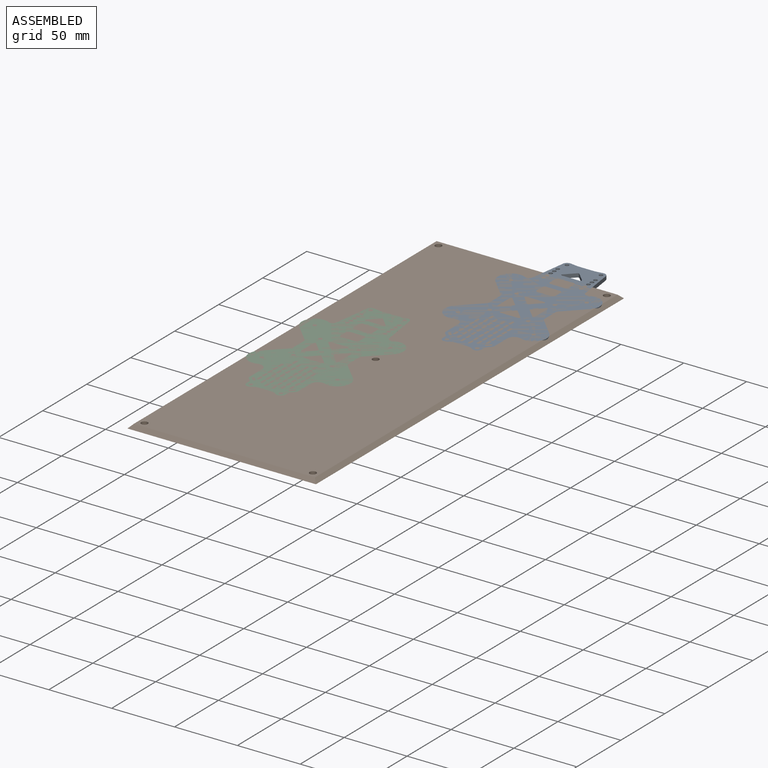
[diagram: assembled view]
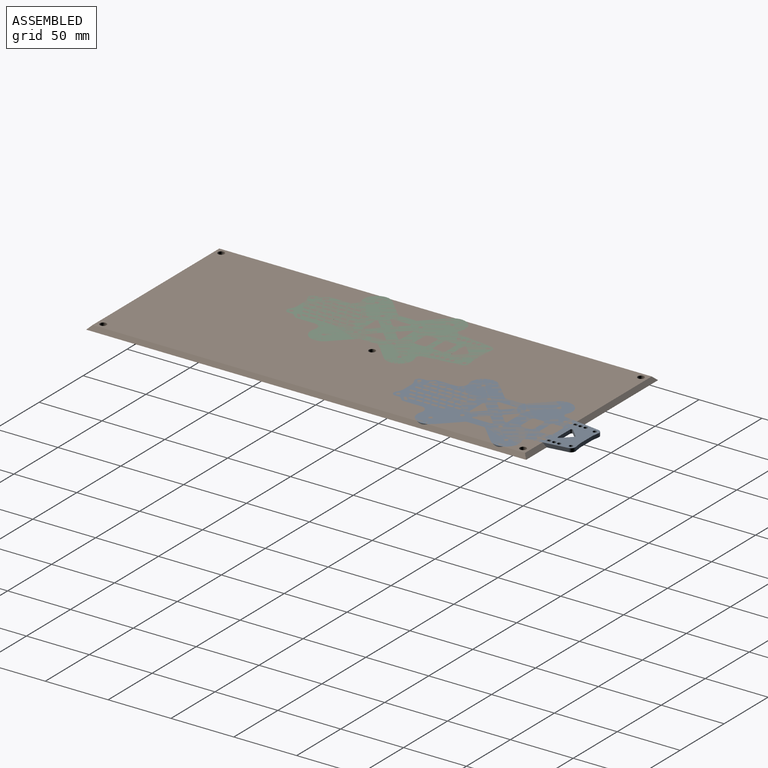
[diagram: assembled view, second angle]
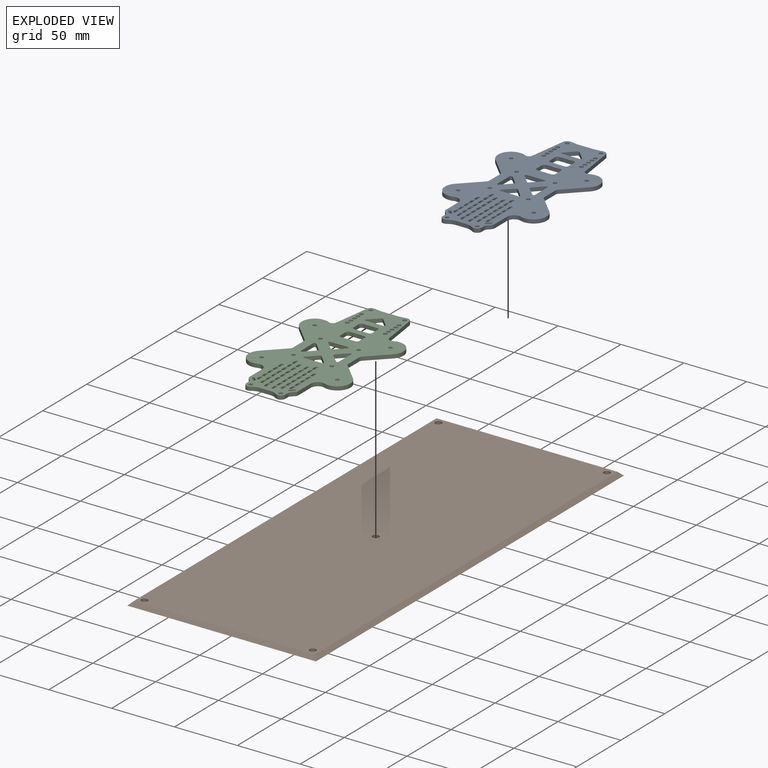
[diagram: exploded view]
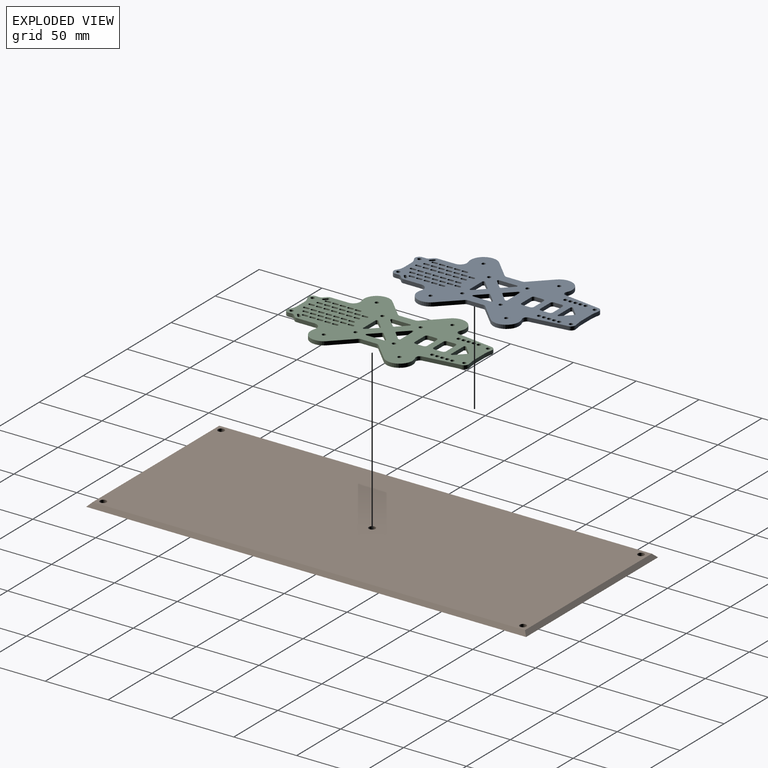
[diagram: exploded view, second angle]
ASSEMBLY  parts=3 mates=2
PART A: 274 faces, bbox 80.9x145.5x3 mm
  f0: plane 3x3mm, normal (-1,0,0), area 9mm2, adj f1,f215,f272,f273
  f1: cylinder r=1mm len=3mm, axis (0,0,-1), area 9.4mm2, adj f0,f2,f272,f273
  f2: plane 3x3mm, normal (1,0,0), area 9mm2, adj f1,f215,f272,f273
  f3: cylinder r=1mm len=3mm, axis (0,0,-1), area 9.4mm2, adj f4,f216,f272,f273
  f4: plane 3x3mm, normal (1,0,0), area 9mm2, adj f3,f5,f272,f273
  f5: cylinder r=1mm len=3mm, axis (0,0,-1), area 9.4mm2, adj f4,f216,f272,f273
  f6: cylinder r=1mm len=3mm, axis (0,0,-1), area 9.4mm2, adj f7,f217,f272,f273
  f7: plane 3x3mm, normal (-1,0,0), area 9mm2, adj f6,f8,f272,f273
  f8: cylinder r=1mm len=3mm, axis (0,0,-1), area 9.4mm2, adj f7,f217,f272,f273
  f9: plane 3x3mm, normal (-1,0,0), area 9mm2, adj f10,f218,f272,f273
  f10: cylinder r=1mm len=3mm, axis (0,0,-1), area 9.4mm2, adj f9,f11,f272,f273
  f11: plane 3x3mm, normal (1,0,0), area 9mm2, adj f10,f218,f272,f273
  f12: cylinder r=1mm len=3mm, axis (0,0,-1), area 9.4mm2, adj f13,f219,f272,f273
  f13: plane 3x3mm, normal (1,0,0), area 9mm2, adj f12,f14,f272,f273
  f14: cylinder r=1mm len=3mm, axis (0,0,-1), area 9.4mm2, adj f13,f219,f272,f273
  f15: plane 3x3mm, normal (-1,0,0), area 9mm2, adj f16,f220,f272,f273
  f16: cylinder r=1mm len=3mm, axis (0,0,-1), area 9.4mm2, adj f15,f17,f272,f273
  f17: plane 3x3mm, normal (1,0,0), area 9mm2, adj f16,f220,f272,f273
  f18: plane 3x3mm, normal (-1,0,0), area 9mm2, adj f19,f221,f272,f273
  f19: cylinder r=1mm len=3mm, axis (0,0,-1), area 9.4mm2, adj f18,f20,f272,f273
  f20: plane 3x3mm, normal (1,0,0), area 9mm2, adj f19,f221,f272,f273
  f21: cylinder r=1mm len=3mm, axis (0,0,-1), area 9.4mm2, adj f22,f222,f272,f273
  f22: plane 3x3mm, normal (-1,0,0), area 9mm2, adj f21,f23,f272,f273
  f23: cylinder r=1mm len=3mm, axis (0,0,-1), area 9.4mm2, adj f22,f222,f272,f273
  f24: cylinder r=1mm len=3mm, axis (0,0,-1), area 9.4mm2, adj f25,f223,f272,f273
  f25: plane 3x3mm, normal (1,0,0), area 9mm2, adj f24,f26,f272,f273
  f26: cylinder r=1mm len=3mm, axis (0,0,-1), area 9.4mm2, adj f25,f223,f272,f273
  f27: cylinder r=1mm len=3mm, axis (0,0,-1), area 9.4mm2, adj f28,f224,f272,f273
  f28: plane 3x3mm, normal (1,0,0), area 9mm2, adj f27,f29,f272,f273
  f29: cylinder r=1mm len=3mm, axis (0,0,-1), area 9.4mm2, adj f28,f224,f272,f273
  f30: plane 3x3mm, normal (-1,0,0), area 9mm2, adj f31,f225,f272,f273
  f31: cylinder r=1mm len=3mm, axis (0,0,-1), area 9.4mm2, adj f30,f32,f272,f273
  f32: plane 3x3mm, normal (1,0,0), area 9mm2, adj f31,f225,f272,f273
  f33: plane 3x2.12mm, normal (-0.71,0.71,0), area 9mm2, adj f34,f226,f272,f273
  f34: cylinder r=1mm len=3mm, axis (0,0,-1), area 9.4mm2, adj f33,f35,f272,f273
  f35: plane 3x2.12mm, normal (0.71,-0.71,0), area 9mm2, adj f34,f226,f272,f273
  f36: cylinder r=1mm len=3mm, axis (0,0,-1), area 9.4mm2, adj f37,f227,f272,f273
  f37: plane 3x3mm, normal (1,0,0), area 9mm2, adj f36,f38,f272,f273
  f38: cylinder r=1mm len=3mm, axis (0,0,-1), area 9.4mm2, adj f37,f227,f272,f273
  f39: plane 11x3mm, normal (0,1,0), area 33mm2, adj f40,f228,f272,f273
  f40: cylinder r=2mm len=3mm, axis (0,0,-1), area 9.4mm2, adj f39,f41,f272,f273
  f41: plane 6x3mm, normal (1,0,0), area 18mm2, adj f40,f42,f272,f273
  f42: cylinder r=2mm len=3mm, axis (0,0,-1), area 9.4mm2, adj f41,f43,f272,f273
  f43: plane 11x3mm, normal (0,-1,0), area 33mm2, adj f42,f44,f272,f273
  f44: cylinder r=2mm len=3mm, axis (0,0,-1), area 9.4mm2, adj f43,f45,f272,f273
  f45: plane 6x3mm, normal (-1,0,0), area 18mm2, adj f44,f228,f272,f273
  f46: cylinder r=1mm len=3mm, axis (0,0,-1), area 9.4mm2, adj f47,f229,f272,f273
  f47: plane 3x3mm, normal (1,0,0), area 9mm2, adj f46,f48,f272,f273
  f48: cylinder r=1mm len=3mm, axis (0,0,-1), area 9.4mm2, adj f47,f229,f272,f273
  f49: plane 3x3mm, normal (-1,0,0), area 9mm2, adj f50,f230,f272,f273
  f50: cylinder r=1mm len=3mm, axis (0,0,-1), area 9.4mm2, adj f49,f51,f272,f273
  f51: plane 3x3mm, normal (1,0,0), area 9mm2, adj f50,f230,f272,f273
  f52: cylinder r=1mm len=3mm, axis (0,0,-1), area 9.4mm2, adj f53,f231,f272,f273
  f53: plane 3x3mm, normal (-1,0,0), area 9mm2, adj f52,f54,f272,f273
  f54: cylinder r=1mm len=3mm, axis (0,0,-1), area 9.4mm2, adj f53,f231,f272,f273
  f55: cylinder r=1mm len=3mm, axis (0,0,-1), area 7.1mm2, adj f56,f232,f272,f273
  f56: plane 14x3mm, normal (0,1,0), area 42mm2, adj f55,f57,f272,f273
  f57: cylinder r=1mm len=3mm, axis (0,0,-1), area 7.1mm2, adj f56,f58,f272,f273
  f58: plane 7x7mm, normal (0.71,-0.71,0), area 29.7mm2, adj f57,f59,f272,f273
  f59: cylinder r=1mm len=3mm, axis (0,0,-1), area 4.7mm2, adj f58,f232,f272,f273
  f60: plane 7x7mm, normal (0.71,0.71,0), area 29.7mm2, adj f61,f233,f272,f273
  f61: cylinder r=1mm len=3mm, axis (0,0,-1), area 7.1mm2, adj f60,f62,f272,f273
  f62: plane 14x3mm, normal (0,-1,0), area 42mm2, adj f61,f63,f272,f273
  f63: cylinder r=1mm len=3mm, axis (0,0,-1), area 7.1mm2, adj f62,f64,f272,f273
  f64: plane 7x7mm, normal (-0.71,0.71,0), area 29.7mm2, adj f63,f233,f272,f273
  f65: plane 7x7mm, normal (0.71,-0.71,0), area 29.7mm2, adj f66,f234,f272,f273
  f66: cylinder r=1mm len=3mm, axis (0,0,-1), area 7.1mm2, adj f65,f67,f272,f273
  f67: plane 14x3mm, normal (-1,0,0), area 42mm2, adj f66,f68,f272,f273
  f68: cylinder r=1mm len=3mm, axis (0,0,-1), area 7.1mm2, adj f67,f69,f272,f273
  f69: plane 7x7mm, normal (0.71,0.71,0), area 29.7mm2, adj f68,f234,f272,f273
  f70: plane 7x7mm, normal (-0.71,-0.71,0), area 29.7mm2, adj f71,f235,f272,f273
  f71: cylinder r=1mm len=3mm, axis (0,0,-1), area 7.1mm2, adj f70,f72,f272,f273
  f72: plane 14x3mm, normal (0,1,0), area 42mm2, adj f71,f73,f272,f273
  f73: cylinder r=1mm len=3mm, axis (0,0,-1), area 7.1mm2, adj f72,f74,f272,f273
  f74: plane 7x7mm, normal (0.71,-0.71,0), area 29.7mm2, adj f73,f235,f272,f273
  f75: cylinder r=1mm len=3mm, axis (0,0,-1), area 4.7mm2, adj f76,f236,f272,f273
  f76: plane 7x7mm, normal (-0.71,0.71,0), area 29.7mm2, adj f75,f77,f272,f273
  f77: cylinder r=1mm len=3mm, axis (0,0,-1), area 7.1mm2, adj f76,f78,f272,f273
  f78: plane 14x3mm, normal (1,0,0), area 42mm2, adj f77,f79,f272,f273
  f79: cylinder r=1mm len=3mm, axis (0,0,-1), area 7.1mm2, adj f78,f236,f272,f273
  f80: plane 11x3mm, normal (0,1,0), area 33mm2, adj f81,f237,f272,f273
  f81: cylinder r=2mm len=3mm, axis (0,0,-1), area 9.4mm2, adj f80,f82,f272,f273
  f82: plane 6x3mm, normal (1,0,0), area 18mm2, adj f81,f83,f272,f273
  f83: cylinder r=2mm len=3mm, axis (0,0,-1), area 9.4mm2, adj f82,f84,f272,f273
  f84: plane 11x3mm, normal (0,-1,0), area 33mm2, adj f83,f85,f272,f273
  f85: cylinder r=2mm len=3mm, axis (0,0,-1), area 9.4mm2, adj f84,f86,f272,f273
  f86: plane 6x3mm, normal (-1,0,0), area 18mm2, adj f85,f237,f272,f273
  f87: cylinder r=3.5mm len=5.53mm, axis (0,0,-1), area 23mm2, adj f88,f238,f272,f273
  f88: plane 3x2.82mm, normal (1,0,0), area 8.4mm2, adj f87,f89,f272,f273
  f89: cylinder r=3mm len=3mm, axis (0,0,-1), area 7.1mm2, adj f88,f90,f272,f273
  f90: plane 3x2.12mm, normal (0.71,-0.71,0), area 9mm2, adj f89,f91,f272,f273
  f91: cylinder r=3mm len=3mm, axis (0,0,-1), area 7.1mm2, adj f90,f92,f272,f273
  f92: plane 14.27x3mm, normal (1,0,0), area 42.8mm2, adj f91,f93,f272,f273
  f93: cylinder r=5.49mm len=7.26mm, axis (0,0,-1), area 31.3mm2, adj f92,f94,f272,f273
  f94: plane 3x0.13mm, normal (-0.32,-0.95,0), area 0.4mm2, adj f93,f95,f272,f273
  f95: cylinder r=10.34mm len=17.65mm, axis (0,0,-1), area 83.3mm2, adj f94,f96,f272,f273
  f96: plane 14.53x14.53mm, normal (0.71,0.71,0), area 61.7mm2, adj f95,f97,f272,f273
  f97: cylinder r=3mm len=3mm, axis (0,0,-1), area 7.1mm2, adj f96,f98,f272,f273
  f98: plane 12.26x3mm, normal (1,0,0), area 36.8mm2, adj f97,f99,f272,f273
  f99: cylinder r=3mm len=3mm, axis (0,0,-1), area 7.1mm2, adj f98,f100,f272,f273
  f100: plane 14.53x14.53mm, normal (0.71,-0.71,0), area 61.7mm2, adj f99,f101,f272,f273
  f101: cylinder r=10.34mm len=17.65mm, axis (0,0,-1), area 88mm2, adj f100,f102,f272,f273
  f102: cylinder r=3.04mm len=4.32mm, axis (0,0,-1), area 17.1mm2, adj f101,f103,f272,f273
  f103: plane 28.89x4.05mm, normal (0.99,0.14,0), area 87.5mm2, adj f102,f104,f272,f273
  f104: cylinder r=3.5mm len=3.98mm, axis (0,0,-1), area 16.6mm2, adj f103,f105,f272,f273
  f105: plane 4.22x3mm, normal (-0.15,0.99,0), area 12.8mm2, adj f104,f106,f272,f273
  f106: cylinder r=24.09mm len=3.54mm, axis (0,0,-1), area 10.7mm2, adj f105,f107,f272,f273
  f107: plane 10.45x3mm, normal (0,1,0), area 31.3mm2, adj f106,f108,f272,f273
  f108: cylinder r=24.09mm len=3.54mm, axis (0,0,-1), area 10.7mm2, adj f107,f109,f272,f273
  f109: plane 4.22x3mm, normal (0.15,0.99,0), area 12.8mm2, adj f108,f110,f272,f273
  f110: cylinder r=3.5mm len=3.98mm, axis (0,0,-1), area 16.6mm2, adj f109,f111,f272,f273
  f111: plane 28.89x4.05mm, normal (-0.99,0.14,0), area 87.5mm2, adj f110,f112,f272,f273
  f112: cylinder r=3.04mm len=4.32mm, axis (0,0,-1), area 17.1mm2, adj f111,f113,f272,f273
  f113: cylinder r=10.34mm len=17.65mm, axis (0,0,-1), area 88mm2, adj f112,f114,f272,f273
  f114: plane 14.53x14.53mm, normal (-0.71,-0.71,0), area 61.7mm2, adj f113,f115,f272,f273
  f115: cylinder r=3mm len=3mm, axis (0,0,-1), area 7.1mm2, adj f114,f116,f272,f273
  f116: plane 12.26x3mm, normal (-1,0,0), area 36.8mm2, adj f115,f117,f272,f273
  f117: cylinder r=3mm len=3mm, axis (0,0,-1), area 7.1mm2, adj f116,f118,f272,f273
  f118: plane 14.53x14.53mm, normal (-0.71,0.71,0), area 61.7mm2, adj f117,f119,f272,f273
  f119: cylinder r=10.34mm len=17.65mm, axis (0,0,-1), area 83.3mm2, adj f118,f120,f272,f273
  f120: plane 3x0.13mm, normal (0.32,-0.95,0), area 0.4mm2, adj f119,f121,f272,f273
  f121: cylinder r=5.49mm len=7.26mm, axis (0,0,-1), area 31.3mm2, adj f120,f122,f272,f273
  f122: plane 14.27x3mm, normal (-1,0,0), area 42.8mm2, adj f121,f123,f272,f273
  f123: cylinder r=3mm len=3mm, axis (0,0,-1), area 7.1mm2, adj f122,f124,f272,f273
  f124: plane 3x2.12mm, normal (-0.71,-0.71,0), area 9mm2, adj f123,f125,f272,f273
  f125: cylinder r=3mm len=3mm, axis (0,0,-1), area 7.1mm2, adj f124,f126,f272,f273
  f126: plane 3x2.82mm, normal (-1,0,0), area 8.4mm2, adj f125,f127,f272,f273
  f127: cylinder r=3.5mm len=5.53mm, axis (0,0,-1), area 23mm2, adj f126,f128,f272,f273
  f128: cylinder r=10mm len=5.8mm, axis (0,0,-1), area 18.6mm2, adj f127,f129,f272,f273
  f129: plane 8.35x3mm, normal (0,-1,0), area 25mm2, adj f128,f238,f272,f273
  f130: plane 3x3mm, normal (1,0,0), area 9mm2, adj f131,f239,f272,f273
  f131: cylinder r=1mm len=3mm, axis (0,0,-1), area 9.4mm2, adj f130,f132,f272,f273
  f132: plane 3x3mm, normal (-1,0,0), area 9mm2, adj f131,f239,f272,f273
  f133: plane 3x3mm, normal (1,0,0), area 9mm2, adj f134,f240,f272,f273
  f134: cylinder r=1mm len=3mm, axis (0,0,-1), area 9.4mm2, adj f133,f135,f272,f273
  f135: plane 3x3mm, normal (-1,0,0), area 9mm2, adj f134,f240,f272,f273
  f136: plane 3x3mm, normal (1,0,0), area 9mm2, adj f137,f241,f272,f273
  f137: cylinder r=1mm len=3mm, axis (0,0,-1), area 9.4mm2, adj f136,f138,f272,f273
  f138: plane 3x3mm, normal (-1,0,0), area 9mm2, adj f137,f241,f272,f273
  f139: plane 3x3mm, normal (1,0,0), area 9mm2, adj f140,f242,f272,f273
  f140: cylinder r=1mm len=3mm, axis (0,0,-1), area 9.4mm2, adj f139,f141,f272,f273
  f141: plane 3x3mm, normal (-1,0,0), area 9mm2, adj f140,f242,f272,f273
  f142: cylinder r=1mm len=3mm, axis (0,0,-1), area 9.4mm2, adj f143,f243,f272,f273
  f143: plane 3x3mm, normal (1,0,0), area 9mm2, adj f142,f144,f272,f273
  f144: cylinder r=1mm len=3mm, axis (0,0,-1), area 9.4mm2, adj f143,f243,f272,f273
  f145: plane 3x3mm, normal (1,0,0), area 9mm2, adj f146,f244,f272,f273
  f146: cylinder r=1mm len=3mm, axis (0,0,-1), area 9.4mm2, adj f145,f147,f272,f273
  f147: plane 3x3mm, normal (-1,0,0), area 9mm2, adj f146,f244,f272,f273
  f148: plane 3x2.12mm, normal (0.71,0.71,0), area 9mm2, adj f149,f245,f272,f273
  f149: cylinder r=1mm len=3mm, axis (0,0,-1), area 9.4mm2, adj f148,f150,f272,f273
  f150: plane 3x2.12mm, normal (-0.71,-0.71,0), area 9mm2, adj f149,f245,f272,f273
  f151: plane 3x3mm, normal (1,0,0), area 9mm2, adj f152,f246,f272,f273
  f152: cylinder r=1mm len=3mm, axis (0,0,-1), area 9.4mm2, adj f151,f153,f272,f273
  f153: plane 3x3mm, normal (-1,0,0), area 9mm2, adj f152,f246,f272,f273
  f154: plane 3x3mm, normal (1,0,0), area 9mm2, adj f155,f247,f272,f273
  f155: cylinder r=1mm len=3mm, axis (0,0,-1), area 9.4mm2, adj f154,f156,f272,f273
  f156: plane 3x3mm, normal (-1,0,0), area 9mm2, adj f155,f247,f272,f273
  f157: plane 3x3mm, normal (1,0,0), area 9mm2, adj f158,f248,f272,f273
  f158: cylinder r=1mm len=3mm, axis (0,0,-1), area 9.4mm2, adj f157,f159,f272,f273
  f159: plane 3x3mm, normal (-1,0,0), area 9mm2, adj f158,f248,f272,f273
  f160: plane 3x3mm, normal (1,0,0), area 9mm2, adj f161,f249,f272,f273
  f161: cylinder r=1mm len=3mm, axis (0,0,-1), area 9.4mm2, adj f160,f162,f272,f273
  f162: plane 3x3mm, normal (-1,0,0), area 9mm2, adj f161,f249,f272,f273
  f163: plane 3x3mm, normal (-1,0,0), area 9mm2, adj f164,f250,f272,f273
  f164: cylinder r=1mm len=3mm, axis (0,0,-1), area 9.4mm2, adj f163,f165,f272,f273
  f165: plane 3x3mm, normal (1,0,0), area 9mm2, adj f164,f250,f272,f273
  f166: plane 3x3mm, normal (-1,0,0), area 9mm2, adj f167,f251,f272,f273
  f167: cylinder r=1mm len=3mm, axis (0,0,-1), area 9.4mm2, adj f166,f168,f272,f273
  f168: plane 3x3mm, normal (1,0,0), area 9mm2, adj f167,f251,f272,f273
  f169: plane 3x3mm, normal (-1,0,0), area 9mm2, adj f170,f252,f272,f273
  f170: cylinder r=1mm len=3mm, axis (0,0,-1), area 9.4mm2, adj f169,f171,f272,f273
  f171: plane 3x3mm, normal (1,0,0), area 9mm2, adj f170,f252,f272,f273
  f172: cylinder r=1mm len=3mm, axis (0,0,-1), area 9.4mm2, adj f173,f253,f272,f273
  f173: plane 3x3mm, normal (1,0,0), area 9mm2, adj f172,f174,f272,f273
  f174: cylinder r=1mm len=3mm, axis (0,0,-1), area 9.4mm2, adj f173,f253,f272,f273
  f175: cylinder r=1mm len=3mm, axis (0,0,-1), area 9.4mm2, adj f176,f254,f272,f273
  f176: plane 3x3mm, normal (1,0,0), area 9mm2, adj f175,f177,f272,f273
  f177: cylinder r=1mm len=3mm, axis (0,0,-1), area 9.4mm2, adj f176,f254,f272,f273
  f178: cylinder r=1mm len=3mm, axis (0,0,-1), area 9.4mm2, adj f179,f255,f272,f273
  f179: plane 3x3mm, normal (1,0,0), area 9mm2, adj f178,f180,f272,f273
  f180: cylinder r=1mm len=3mm, axis (0,0,-1), area 9.4mm2, adj f179,f255,f272,f273
  f181: plane 3x3mm, normal (-1,0,0), area 9mm2, adj f182,f256,f272,f273
  f182: cylinder r=1mm len=3mm, axis (0,0,-1), area 9.4mm2, adj f181,f183,f272,f273
  f183: plane 3x3mm, normal (1,0,0), area 9mm2, adj f182,f256,f272,f273
  f184: cylinder r=1mm len=3mm, axis (0,0,-1), area 9.4mm2, adj f185,f257,f272,f273
  f185: plane 3x3mm, normal (1,0,0), area 9mm2, adj f184,f186,f272,f273
  f186: cylinder r=1mm len=3mm, axis (0,0,-1), area 9.4mm2, adj f185,f257,f272,f273
  f187: plane 3x3mm, normal (-1,0,0), area 9mm2, adj f188,f258,f272,f273
  f188: cylinder r=1mm len=3mm, axis (0,0,-1), area 9.4mm2, adj f187,f189,f272,f273
  f189: plane 3x3mm, normal (1,0,0), area 9mm2, adj f188,f258,f272,f273
  f190: cylinder r=1mm len=3mm, axis (0,0,-1), area 9.4mm2, adj f191,f259,f272,f273
  f191: plane 3x3mm, normal (1,0,0), area 9mm2, adj f190,f192,f272,f273
  f192: cylinder r=1mm len=3mm, axis (0,0,-1), area 9.4mm2, adj f191,f259,f272,f273
  f193: cylinder r=1mm len=3mm, axis (0,0,-1), area 9.4mm2, adj f194,f260,f272,f273
  f194: plane 3x3mm, normal (1,0,0), area 9mm2, adj f193,f195,f272,f273
  f195: cylinder r=1mm len=3mm, axis (0,0,-1), area 9.4mm2, adj f194,f260,f272,f273
  f196: cylinder r=1mm len=3mm, axis (0,0,-1), area 9.4mm2, adj f197,f261,f272,f273
  f197: plane 3x3mm, normal (1,0,0), area 9mm2, adj f196,f198,f272,f273
  f198: cylinder r=1mm len=3mm, axis (0,0,-1), area 9.4mm2, adj f197,f261,f272,f273
  f199: cylinder r=1mm len=3mm, axis (0,0,-1), area 9.4mm2, adj f200,f262,f272,f273
  f200: plane 3x3mm, normal (1,0,0), area 9mm2, adj f199,f201,f272,f273
  f201: cylinder r=1mm len=3mm, axis (0,0,-1), area 9.4mm2, adj f200,f262,f272,f273
  f202: cylinder r=1.5mm len=3mm, axis (0,0,-1), area 28.3mm2, adj f272,f273
  f203: cylinder r=1.5mm len=3mm, axis (0,0,-1), area 28.3mm2, adj f272,f273
  f204: cylinder r=1.5mm len=3mm, axis (0,0,-1), area 28.3mm2, adj f272,f273
  f205: cylinder r=1.5mm len=3mm, axis (0,0,-1), area 28.3mm2, adj f272,f273
  f206: cylinder r=1.5mm len=3mm, axis (0,0,-1), area 28.3mm2, adj f272,f273
  f207: cylinder r=1.5mm len=3mm, axis (0,0,-1), area 28.3mm2, adj f272,f273
  f208: cylinder r=1.5mm len=3mm, axis (0,0,-1), area 28.3mm2, adj f272,f273
  f209: cylinder r=1.5mm len=3mm, axis (0,0,-1), area 28.3mm2, adj f272,f273
  f210: cylinder r=1.5mm len=3mm, axis (0,0,-1), area 28.3mm2, adj f272,f273
  f211: cylinder r=1.5mm len=3mm, axis (0,0,-1), area 28.3mm2, adj f272,f273
  f212: cylinder r=1.5mm len=3mm, axis (0,0,-1), area 28.3mm2, adj f272,f273
  f213: cylinder r=1.5mm len=3mm, axis (0,0,-1), area 28.3mm2, adj f272,f273
  f214: cylinder r=1.5mm len=3mm, axis (0,0,-1), area 28.3mm2, adj f272,f273
  f215: cylinder r=1mm len=3mm, axis (0,0,-1), area 9.4mm2, adj f0,f2,f272,f273
  f216: plane 3x3mm, normal (-1,0,0), area 9mm2, adj f3,f5,f272,f273
  f217: plane 3x3mm, normal (1,0,0), area 9mm2, adj f6,f8,f272,f273
  f218: cylinder r=1mm len=3mm, axis (0,0,-1), area 9.4mm2, adj f9,f11,f272,f273
  f219: plane 3x3mm, normal (-1,0,0), area 9mm2, adj f12,f14,f272,f273
  f220: cylinder r=1mm len=3mm, axis (0,0,-1), area 9.4mm2, adj f15,f17,f272,f273
  f221: cylinder r=1mm len=3mm, axis (0,0,-1), area 9.4mm2, adj f18,f20,f272,f273
  f222: plane 3x3mm, normal (1,0,0), area 9mm2, adj f21,f23,f272,f273
  f223: plane 3x3mm, normal (-1,0,0), area 9mm2, adj f24,f26,f272,f273
  f224: plane 3x3mm, normal (-1,0,0), area 9mm2, adj f27,f29,f272,f273
  f225: cylinder r=1mm len=3mm, axis (0,0,-1), area 9.4mm2, adj f30,f32,f272,f273
  f226: cylinder r=1mm len=3mm, axis (0,0,-1), area 9.4mm2, adj f33,f35,f272,f273
  f227: plane 3x3mm, normal (-1,0,0), area 9mm2, adj f36,f38,f272,f273
  f228: cylinder r=2mm len=3mm, axis (0,0,-1), area 9.4mm2, adj f39,f45,f272,f273
  f229: plane 3x3mm, normal (-1,0,0), area 9mm2, adj f46,f48,f272,f273
  f230: cylinder r=1mm len=3mm, axis (0,0,-1), area 9.4mm2, adj f49,f51,f272,f273
  f231: plane 3x3mm, normal (1,0,0), area 9mm2, adj f52,f54,f272,f273
  f232: plane 7x7mm, normal (-0.71,-0.71,0), area 29.7mm2, adj f55,f59,f272,f273
  f233: cylinder r=1mm len=3mm, axis (0,0,-1), area 4.7mm2, adj f60,f64,f272,f273
  f234: cylinder r=1mm len=3mm, axis (0,0,-1), area 4.7mm2, adj f65,f69,f272,f273
  f235: cylinder r=1mm len=3mm, axis (0,0,-1), area 4.7mm2, adj f70,f74,f272,f273
  f236: plane 7x7mm, normal (-0.71,-0.71,0), area 29.7mm2, adj f75,f79,f272,f273
  f237: cylinder r=2mm len=3mm, axis (0,0,-1), area 9.4mm2, adj f80,f86,f272,f273
  f238: cylinder r=10mm len=5.8mm, axis (0,0,-1), area 18.6mm2, adj f87,f129,f272,f273
  f239: cylinder r=1mm len=3mm, axis (0,0,-1), area 9.4mm2, adj f130,f132,f272,f273
  f240: cylinder r=1mm len=3mm, axis (0,0,-1), area 9.4mm2, adj f133,f135,f272,f273
  f241: cylinder r=1mm len=3mm, axis (0,0,-1), area 9.4mm2, adj f136,f138,f272,f273
  f242: cylinder r=1mm len=3mm, axis (0,0,-1), area 9.4mm2, adj f139,f141,f272,f273
  f243: plane 3x3mm, normal (-1,0,0), area 9mm2, adj f142,f144,f272,f273
  f244: cylinder r=1mm len=3mm, axis (0,0,-1), area 9.4mm2, adj f145,f147,f272,f273
  f245: cylinder r=1mm len=3mm, axis (0,0,-1), area 9.4mm2, adj f148,f150,f272,f273
  f246: cylinder r=1mm len=3mm, axis (0,0,-1), area 9.4mm2, adj f151,f153,f272,f273
  f247: cylinder r=1mm len=3mm, axis (0,0,-1), area 9.4mm2, adj f154,f156,f272,f273
  f248: cylinder r=1mm len=3mm, axis (0,0,-1), area 9.4mm2, adj f157,f159,f272,f273
  f249: cylinder r=1mm len=3mm, axis (0,0,-1), area 9.4mm2, adj f160,f162,f272,f273
  f250: cylinder r=1mm len=3mm, axis (0,0,-1), area 9.4mm2, adj f163,f165,f272,f273
  f251: cylinder r=1mm len=3mm, axis (0,0,-1), area 9.4mm2, adj f166,f168,f272,f273
  f252: cylinder r=1mm len=3mm, axis (0,0,-1), area 9.4mm2, adj f169,f171,f272,f273
  f253: plane 3x3mm, normal (-1,0,0), area 9mm2, adj f172,f174,f272,f273
  f254: plane 3x3mm, normal (-1,0,0), area 9mm2, adj f175,f177,f272,f273
  f255: plane 3x3mm, normal (-1,0,0), area 9mm2, adj f178,f180,f272,f273
  f256: cylinder r=1mm len=3mm, axis (0,0,-1), area 9.4mm2, adj f181,f183,f272,f273
  f257: plane 3x3mm, normal (-1,0,0), area 9mm2, adj f184,f186,f272,f273
  f258: cylinder r=1mm len=3mm, axis (0,0,-1), area 9.4mm2, adj f187,f189,f272,f273
  f259: plane 3x3mm, normal (-1,0,0), area 9mm2, adj f190,f192,f272,f273
  f260: plane 3x3mm, normal (-1,0,0), area 9mm2, adj f193,f195,f272,f273
  f261: plane 3x3mm, normal (-1,0,0), area 9mm2, adj f196,f198,f272,f273
  f262: plane 3x3mm, normal (-1,0,0), area 9mm2, adj f199,f201,f272,f273
  f263: cylinder r=1.5mm len=3mm, axis (0,0,-1), area 28.3mm2, adj f272,f273
  f264: cylinder r=1.5mm len=3mm, axis (0,0,-1), area 28.3mm2, adj f272,f273
  f265: cylinder r=1.5mm len=3mm, axis (0,0,-1), area 28.3mm2, adj f272,f273
  f266: cylinder r=1.5mm len=3mm, axis (0,0,-1), area 28.3mm2, adj f272,f273
  f267: cylinder r=1.5mm len=3mm, axis (0,0,-1), area 28.3mm2, adj f272,f273
  f268: cylinder r=1.5mm len=3mm, axis (0,0,-1), area 28.3mm2, adj f272,f273
  f269: cylinder r=1.5mm len=3mm, axis (0,0,-1), area 28.3mm2, adj f272,f273
  f270: cylinder r=1.5mm len=3mm, axis (0,0,-1), area 28.3mm2, adj f272,f273
  f271: cylinder r=1.5mm len=3mm, axis (0,0,-1), area 28.3mm2, adj f272,f273
  f272: plane 145.5x80.88mm, normal (0,0,1), area 6285.2mm2, adj f0,f1,f2,f3,f4,f5,f6,f7
  f273: plane 145.5x80.88mm, normal (0,0,-1), area 6285.2mm2, adj f0,f1,f2,f3,f4,f5,f6,f7
PART B: 11 faces, bbox 150x350x3 mm
  f0: plane 344x144mm, normal (0,0,1), area 49429.8mm2, adj f2,f3,f4,f5,f6,f7,f8,f9
  f1: plane 350x150mm, normal (0,0,-1), area 52393.8mm2, adj f2,f3,f4,f5,f6,f7,f8,f9
  f2: cylinder r=2.6mm len=5.2mm, axis (0,0,-1), area 49mm2, adj f0,f1
  f3: cylinder r=2.6mm len=5.2mm, axis (0,0,-1), area 49mm2, adj f0,f1
  f4: cylinder r=2.6mm len=5.2mm, axis (0,0,-1), area 49mm2, adj f0,f1
  f5: cylinder r=2.6mm len=5.2mm, axis (0,0,-1), area 49mm2, adj f0,f1
  f6: cylinder r=2.6mm len=5.2mm, axis (0,0,-1), area 49mm2, adj f0,f1
  f7: plane 150x3mm, normal (0,0.71,0.71), area 623.7mm2, adj f0,f1,f8,f9
  f8: plane 350x3mm, normal (0.71,0,0.71), area 1472.2mm2, adj f0,f1,f7,f10
  f9: plane 350x3mm, normal (-0.71,0,0.71), area 1472.2mm2, adj f0,f1,f7,f10
  f10: plane 150x3mm, normal (0,-0.71,0.71), area 623.7mm2, adj f0,f1,f8,f9
PART C: same geometry as A
PLACE A t=(32.42,120.37,0)mm
PLACE B at identity fixed
PLACE C t=(-32.47,-9.98,0)mm
MATE planar C.f272 <-> B.f2  axis (0,0,1) through (-32.47,-9.3,3)mm
MATE planar A.f272 <-> B.f2  axis (0,0,1) through (32.42,121.06,3)mm
